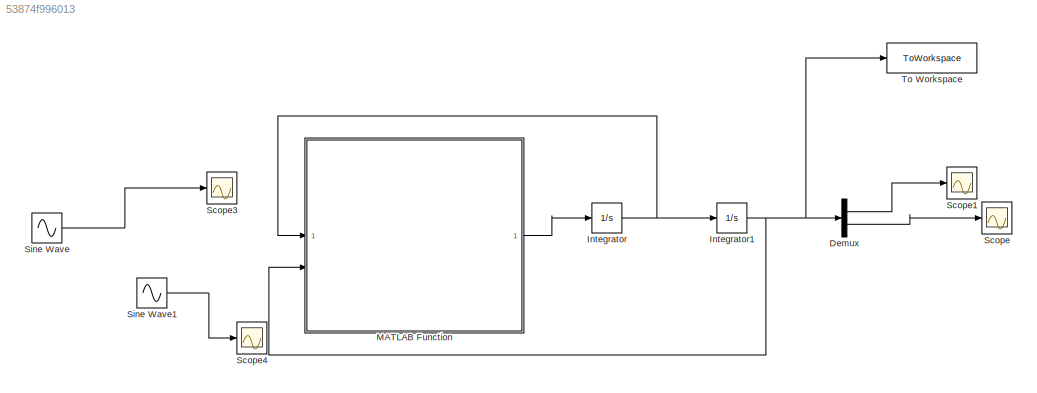
MODEL slx_53874f996013
KIND model
CONFIG AbsTol = auto
CONFIG EnableMultiTasking = off
CONFIG FixedStep = 1e-3
CONFIG MaxStep = auto
CONFIG MinStep = auto
CONFIG RelTol = 1e-3
CONFIG SampleTimeConstraint = Unconstrained
CONFIG SolverName = ode4
CONFIG StartTime = 0.0
CONFIG StopTime = 200
BLOCK [Demux] Demux
  Outputs = 2
BLOCK [Integrator] Integrator
  InitialCondition = [0;0]
BLOCK [Integrator] Integrator1
  InitialCondition = [1.1;1.7]
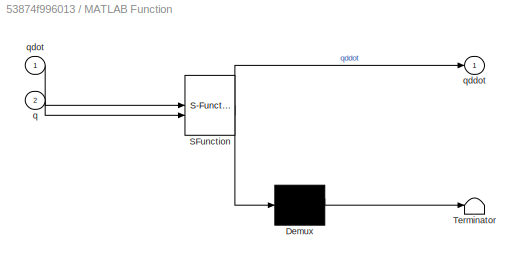
BLOCK [SubSystem] MATLAB Function
  ErrorFcn = Stateflow.Translate.translate
  PermitHierarchicalResolution = ExplicitOnly
  SFBlockType = MATLAB Function
  TreatAsAtomicUnit = on
BLOCK [Demux] MATLAB Function/ Demux 
  Outputs = 1
BLOCK [S-Function] MATLAB Function/ SFunction 
  EnableBusSupport = on
  FunctionName = sf_sfun
  PortCounts = [2 2]
  SFcnIsStateOwnerBlock = off
  SFunctionDeploymentMode = off
  Tag = Stateflow S-Function 2
BLOCK [Terminator] MATLAB Function/ Terminator 
BLOCK [Inport] MATLAB Function/q
  Port = 2
BLOCK [Outport] MATLAB Function/qddot
BLOCK [Inport] MATLAB Function/qdot
BLOCK [Scope] Scope
  Floating = off
  NumInputPorts = 1
  ScopeSpecificationString = Simulink.scopes.TimeScopeBlockCfg('CurrentConfiguration', extmgr.ConfigurationSet(extmgr.Configuration('Core','General UI',true),extmgr.Configuration('Core','Source UI',true),extmgr.Configuration('Sources','WiredSimulink',true),extmgr.Configuration('Visuals','Time Domain',true,'SerializedDisplays',{struct('MinYLimReal','1.53612','MaxYLimReal','1.71821','YLabelReal','','MinYLimMag','1.53612','MaxYL...<+1414ch>
BLOCK [Scope] Scope1
  Floating = off
  NumInputPorts = 1
  ScopeSpecificationString = Simulink.scopes.TimeScopeBlockCfg('CurrentConfiguration', extmgr.ConfigurationSet(extmgr.Configuration('Core','General UI',true),extmgr.Configuration('Core','Source UI',true),extmgr.Configuration('Sources','WiredSimulink',true,'DataLoggingVariableName','ScopeData1'),extmgr.Configuration('Visuals','Time Domain',true,'SerializedDisplays',{struct('MinYLimReal','-25679359047703127576853491576486931401...<+3896ch>
BLOCK [Scope] Scope3
  Floating = off
  NumInputPorts = 1
  ScopeSpecificationString = Simulink.scopes.TimeScopeBlockCfg('CurrentConfiguration', extmgr.ConfigurationSet(extmgr.Configuration('Core','General UI',true),extmgr.Configuration('Core','Source UI',true),extmgr.Configuration('Sources','WiredSimulink',true,'DataLoggingVariableName','ScopeData1'),extmgr.Configuration('Visuals','Time Domain',true,'SerializedDisplays',{struct('MinYLimReal','-1.00000','MaxYLimReal','1.00000','YLab...<+1457ch>
BLOCK [Scope] Scope4
  Floating = off
  NumInputPorts = 1
  ScopeSpecificationString = Simulink.scopes.TimeScopeBlockCfg('CurrentConfiguration', extmgr.ConfigurationSet(extmgr.Configuration('Core','General UI',true),extmgr.Configuration('Core','Source UI',true),extmgr.Configuration('Sources','WiredSimulink',true,'DataLoggingVariableName','ScopeData2'),extmgr.Configuration('Visuals','Time Domain',true,'SerializedDisplays',{struct('MinYLimReal','-0.625','MaxYLimReal','0.625','YLabelRe...<+1446ch>
BLOCK [Sin] Sine Wave
  Amplitude = -4/5
  Frequency = 2
  SampleTime = 0
BLOCK [Sin] Sine Wave1
  Amplitude = 1/2
  SampleTime = 0
BLOCK [ToWorkspace] To Workspace
  FixptAsFi = on
  MaxDataPoints = inf
  SampleTime = -1
  VariableName = q
LINE Demux:1 -> Scope1:1
LINE Demux:2 -> Scope:1
NET Integrator1:1 -> Demux:1, MATLAB Function:2, To Workspace:1
NET Integrator:1 -> Integrator1:1, MATLAB Function:1
LINE MATLAB Function:1 -> Integrator:1
LINE Sine Wave1:1 -> Scope4:1
LINE Sine Wave:1 -> Scope3:1
note: NET lines group one-source signal fan-out (src -> all destinations, sorted); 1:1 wires keep LINE
CHART MATLAB Function states=1 transitions=1
  STATE_LABEL 'eML_blk_kernel()'
  STATE_LABEL 'SCRIPT:\nfunction qddot = fcn(qdot,q)\n\n\n% Variables\n\ng = 9.81;\nLp = 0.5;\nLw = 1;\nMp = 1;\nMw = 0.2;\nJp = 0.083;\nJw = 0.1;\ndphi = 0.2;\nktheta = 6.558;\ndtheta = 0.1;\ntheta_ref = pi/2;\nkphi = 0.114;\nphi_ref = pi/2;\n\n\nq1 = [q(1)-1.04762 ; q(2)-pi/2];\n\n\n% Matrices\n\nM = [Mp*Lp^2 + Mw*Lw^2 + Jp + Jw , Jw ; Jw , Jw];\n\nD = [dtheta , 0 ; 0 , dphi];\n\nK = [ktheta - 0.5*sqrt(3)*g*(Lp*Mp + Lw*Mw) , 0 ; 0 , kphi];...<+103ch>'
CHART  states=0 transitions=0
